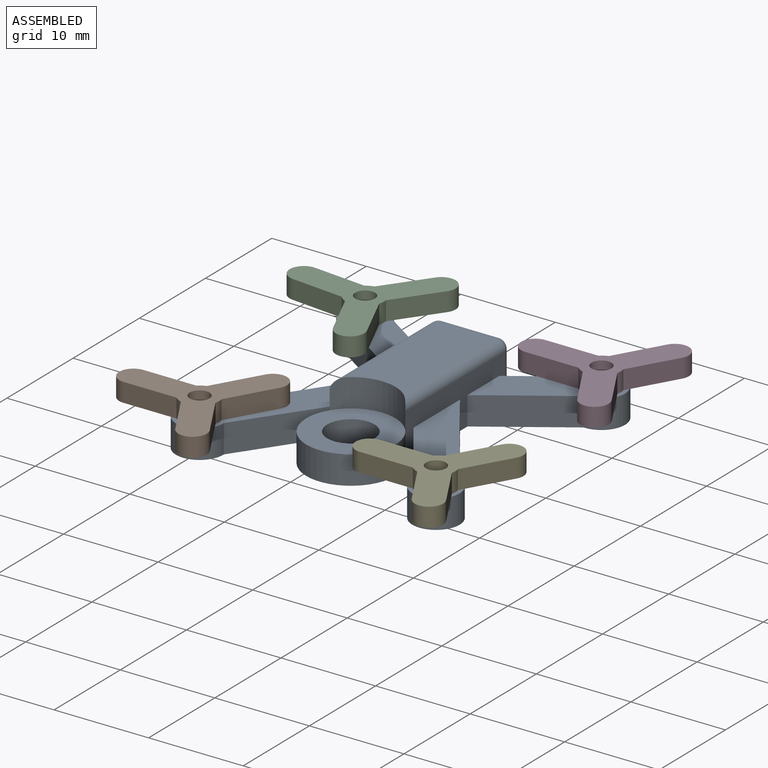
[diagram: assembled view]
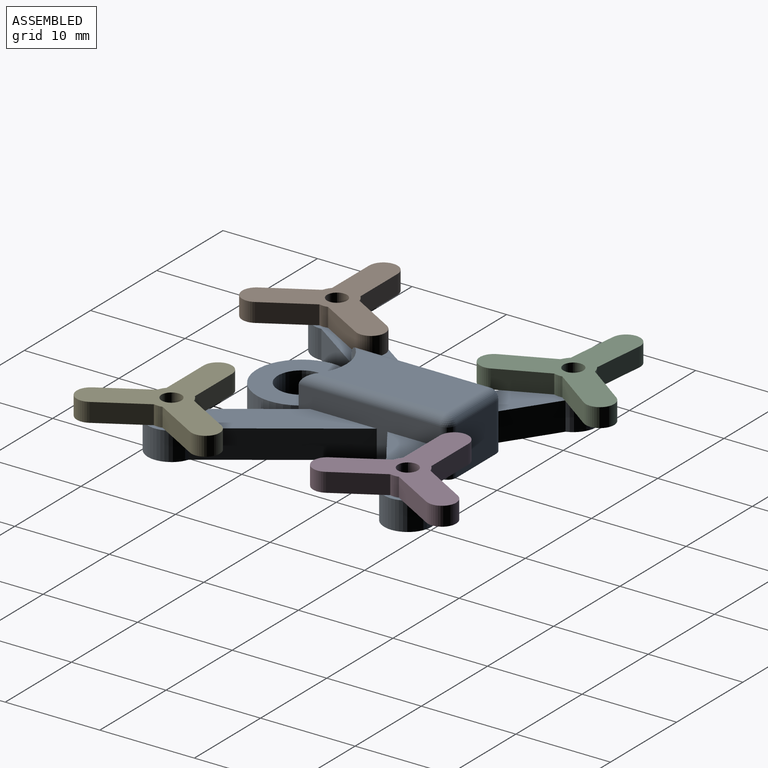
[diagram: assembled view, second angle]
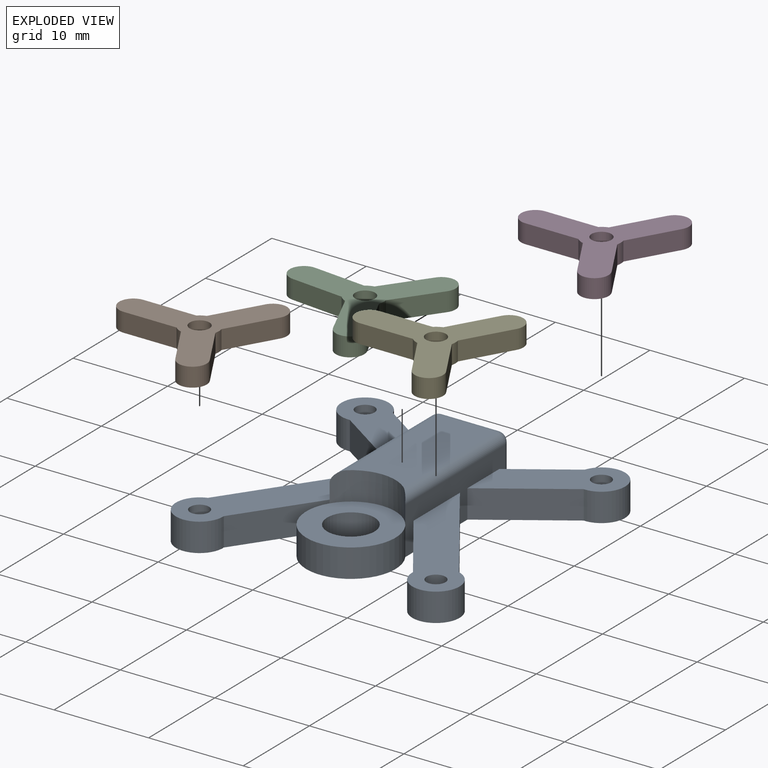
[diagram: exploded view]
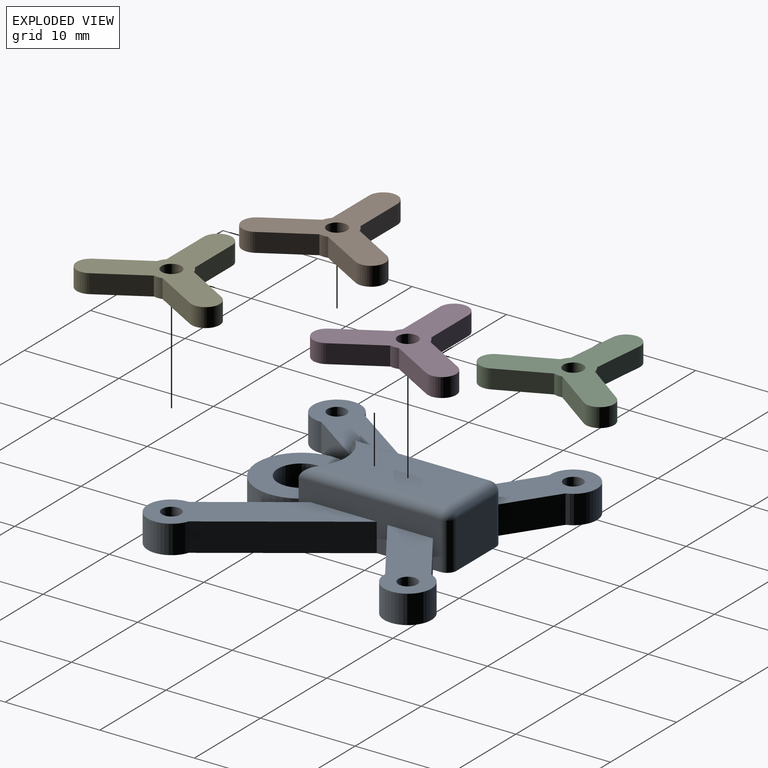
[diagram: exploded view, second angle]
ASSEMBLY  parts=5 mates=4
PART A: 36 faces, bbox 30x30x6 mm
  f0: plane 18.26x11mm, normal (0,0,1), area 67.4mm2, adj f7,f8,f9,f10,f24
  f1: plane 11x10.61mm, normal (0,0,1), area 48.6mm2, adj f4,f5,f6,f10,f23
  f2: plane 9.43x9.43mm, normal (0,0,1), area 50.3mm2, adj f11,f20,f27
  f3: plane 18.26x11mm, normal (0,0,1), area 67.4mm2, adj f12,f13,f14,f18,f21
  f4: plane 6.14x4.12mm, normal (0.56,0.83,0), area 22.2mm2, adj f1,f5,f10,f26
  f5: cylinder r=2.5mm len=5mm, axis (0,0,-1), area 33.2mm2, adj f1,f4,f6,f26
  f6: plane 8.37x5.62mm, normal (-0.56,-0.83,0), area 30.2mm2, adj f1,f5,f10,f26
  f7: plane 13.39x9.29mm, normal (-0.82,0.57,0), area 48.9mm2, adj f0,f8,f10,f26
  f8: cylinder r=2.5mm len=5mm, axis (0,0,-1), area 33.2mm2, adj f0,f7,f9,f26
  f9: plane 8.65x6mm, normal (0.82,-0.57,0), area 31.6mm2, adj f0,f8,f10,f26
  f10: plane 15x5mm, normal (-1,0,0), area 39.5mm2, adj f0,f1,f4,f6,f7,f9,f11,f26
  f11: cylinder r=4.72mm len=9.43mm, axis (0,0,-1), area 60.3mm2, adj f2,f10,f18,f26
  f12: plane 8.65x6mm, normal (-0.82,-0.57,0), area 31.6mm2, adj f3,f13,f18,f26
  f13: cylinder r=2.5mm len=5mm, axis (0,0,-1), area 33.2mm2, adj f3,f12,f14,f26
  f14: plane 13.39x9.29mm, normal (0.82,0.57,0), area 48.9mm2, adj f3,f13,f18,f26
  f15: plane 8.37x5.62mm, normal (0.56,-0.83,0), area 30.2mm2, adj f16,f18,f25,f26
  f16: cylinder r=2.5mm len=5mm, axis (0,0,-1), area 33.2mm2, adj f15,f17,f25,f26
  f17: plane 6.14x4.12mm, normal (-0.56,0.83,0), area 22.2mm2, adj f16,f18,f25,f26
  f18: plane 15x5mm, normal (1,0,0), area 39.5mm2, adj f3,f11,f12,f14,f15,f17,f25,f26
  f19: plane 6x5mm, normal (0,1,0), area 30mm2, adj f26,f29,f32,f33
  f20: cylinder r=2.5mm len=5mm, axis (0,0,-1), area 47.1mm2, adj f2,f26
  f21: cylinder r=1mm len=3mm, axis (0,0,-1), area 18.8mm2, adj f3,f26
  f22: cylinder r=1mm len=3mm, axis (0,0,-1), area 18.8mm2, adj f25,f26
  f23: cylinder r=1mm len=3mm, axis (0,0,-1), area 18.8mm2, adj f1,f26
  f24: cylinder r=1mm len=3mm, axis (0,0,-1), area 18.8mm2, adj f0,f26
  f25: plane 11x10.61mm, normal (0,0,1), area 48.6mm2, adj f15,f16,f17,f18,f22
  f26: plane 30x30mm, normal (0,0,-1), area 397.3mm2, adj f4,f5,f6,f7,f8,f9,f10,f11
  f27: cylinder r=4.72mm len=8mm, axis (0,0,-1), area 27.9mm2, adj f2,f10,f18,f28,f30,f35
  f28: plane 13.86x6mm, normal (0,0,1), area 78.7mm2, adj f27,f30,f33,f35
  f29: cylinder r=1mm len=5mm, axis (0,0,-1), area 7.9mm2, adj f18,f19,f26,f31
  f30: cylinder r=1mm len=15mm, axis (0,-1,0), area 22.8mm2, adj f18,f27,f28,f31
  f31: sphere r=1mm, area 1.6mm2, adj f29,f30,f33
  f32: cylinder r=1mm len=5mm, axis (0,0,1), area 7.9mm2, adj f10,f19,f26,f34
  f33: cylinder r=1mm len=6mm, axis (1,0,0), area 9.4mm2, adj f19,f28,f31,f34
  f34: sphere r=1mm, area 1.6mm2, adj f32,f33,f35
  f35: cylinder r=1mm len=15mm, axis (0,1,0), area 22.8mm2, adj f10,f27,f28,f34
PART B: 15 faces, bbox 13.5x15.1x2 mm
  f0: plane 4.85x2.8mm, normal (-0.87,-0.5,0), area 11.2mm2, adj f1,f11,f13,f14
  f1: cylinder r=1.5mm len=2.8mm, axis (0,0,-1), area 9.4mm2, adj f0,f2,f13,f14
  f2: plane 4.85x2.8mm, normal (0.87,0.5,0), area 11.2mm2, adj f1,f3,f13,f14
  f3: cylinder r=2.05mm len=2mm, axis (0,0,-1), area 1.9mm2, adj f2,f4,f13,f14
  f4: plane 4.85x2.8mm, normal (0.87,-0.5,0), area 11.2mm2, adj f3,f5,f13,f14
  f5: cylinder r=1.5mm len=2.8mm, axis (0,0,-1), area 9.4mm2, adj f4,f6,f13,f14
  f6: plane 4.85x2.8mm, normal (-0.87,0.5,0), area 11.2mm2, adj f5,f7,f13,f14
  f7: cylinder r=2.05mm len=2mm, axis (0,0,-1), area 1.9mm2, adj f6,f8,f13,f14
  f8: plane 5.6x2mm, normal (0,1,0), area 11.2mm2, adj f7,f9,f13,f14
  f9: cylinder r=1.5mm len=3mm, axis (0,0,-1), area 9.4mm2, adj f8,f10,f13,f14
  f10: plane 5.6x2mm, normal (0,-1,0), area 11.2mm2, adj f9,f11,f13,f14
  f11: cylinder r=2.05mm len=2mm, axis (0,0,-1), area 1.9mm2, adj f0,f10,f13,f14
  f12: cylinder r=1.05mm len=2.1mm, axis (0,0,-1), area 13.2mm2, adj f13,f14
  f13: plane 15.12x13.5mm, normal (0,0,1), area 66.7mm2, adj f0,f1,f2,f3,f4,f5,f6,f7
  f14: plane 15.12x13.5mm, normal (0,0,-1), area 66.7mm2, adj f0,f1,f2,f3,f4,f5,f6,f7
PART C: same geometry as B
PART D: same geometry as B
PART E: same geometry as B
PLACE A t=(-6,-3.37,-4.7)mm fixed
PLACE B rot(axis=(1,0,0),180deg) t=(-45.66,-9.9,0.3)mm
PLACE C rot(axis=(0.46,-0.89,0),180deg) t=(2.22,27.67,0.3)mm
PLACE D rot(axis=(1,0,0),180deg) t=(-20.66,15.1,0.3)mm
PLACE E rot(axis=(1,0,0),180deg) t=(-20.66,-9.9,0.3)mm
MATE revolute C.f3 <-> A.f5  axis (0,0,-1) through (-18.5,9.13,-1.7)mm
MATE revolute E.f3 <-> A.f13  axis (0,0,-1) through (6.5,-15.87,-1.7)mm
MATE revolute B.f3 <-> A.f8  axis (0,0,-1) through (-18.5,-15.87,-1.7)mm
MATE revolute D.f3 <-> A.f16  axis (0,0,1) through (6.5,9.13,-1.7)mm
